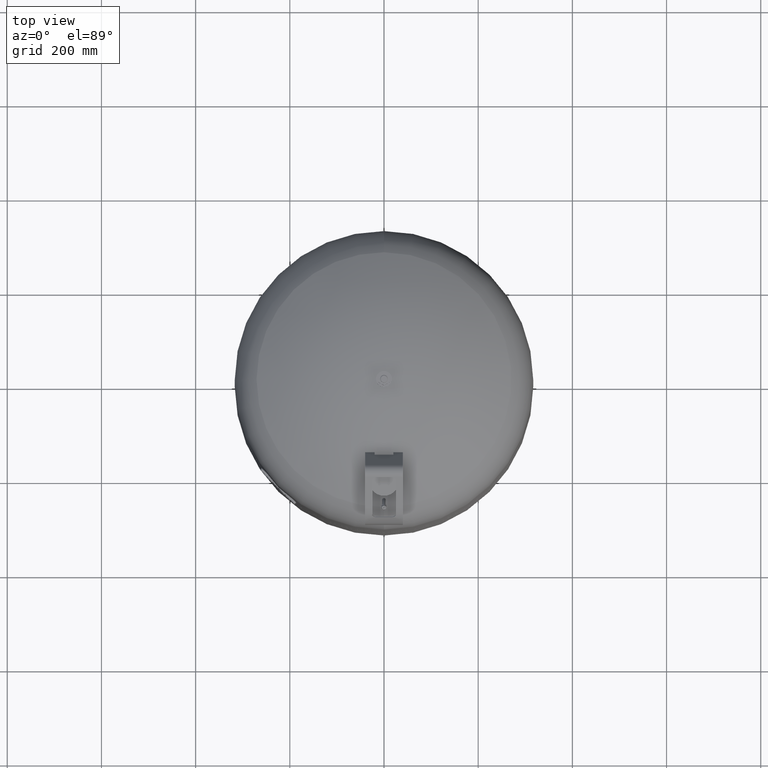
[diagram: clean part render]
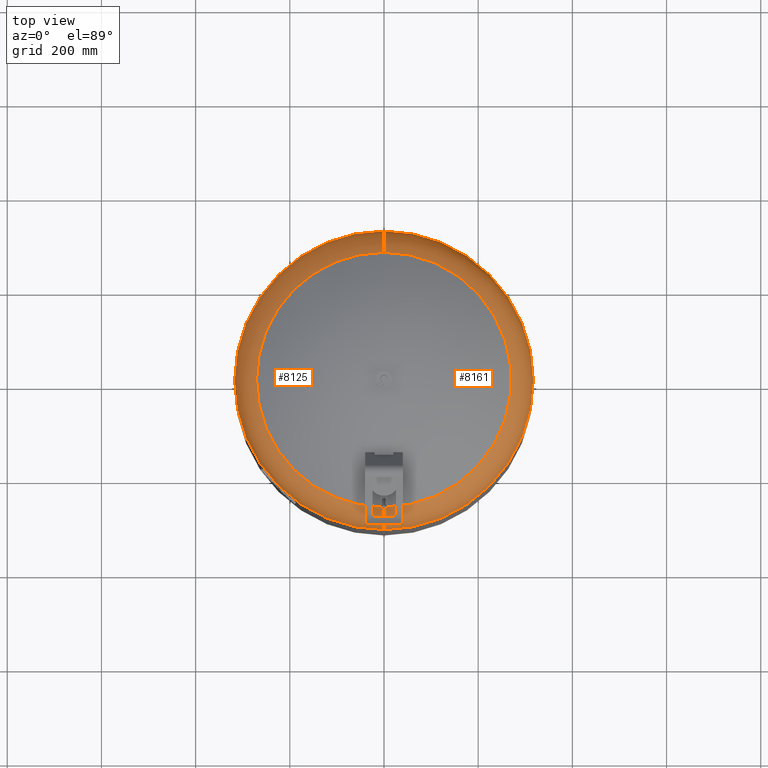
[diagram: same view with one multi-face feature highlighted, each face labeled with its STEP entity id]
A machine part, top view. The highlighted faces form ONE feature: a constant-radius fillet chain: 2 tangent blend faces with common blend radius 99 mm. The faces share edges in the B-rep.
Their STEP definitions:
[1] entity #8161 (Torus):
#8047=CARTESIAN_POINT('',(317.0,1.070453E-014,1076.240550627371200));
#8048=VERTEX_POINT('',#8047);
#8055=CARTESIAN_POINT('',(-3.882002E-014,-317.0,1076.240550627371200));
#8056=VERTEX_POINT('',#8055);
#8057=CARTESIAN_POINT('',(-1.556097E-014,4.952455E-014,1076.240550627371200));
#8058=DIRECTION('',(0.0,0.0,-1.0));
#8059=DIRECTION('',(-1.0,0.0,0.0));
#8060=AXIS2_PLACEMENT_3D('',#8057,#8058,#8059);
#8061=CIRCLE('',#8060,317.000000000000060);
#8062=EDGE_CURVE('',#8048,#8056,#8061,.T.);
#8079=CARTESIAN_POINT('',(6.180908E-030,317.000000000000110,1076.240550627371200));
#8080=VERTEX_POINT('',#8079);
#8081=CARTESIAN_POINT('',(8.065826E-015,270.639024390243830,1160.086439681297600));
#8082=VERTEX_POINT('',#8081);
#8083=CARTESIAN_POINT('',(0.0,218.000000000000060,1076.240550627371200));
#8084=DIRECTION('',(1.0,0.0,0.0));
#8085=DIRECTION('',(0.0,1.0,0.0));
#8086=AXIS2_PLACEMENT_3D('',#8083,#8084,#8085);
#8087=CIRCLE('',#8086,99.0);
#8088=EDGE_CURVE('',#8080,#8082,#8087,.T.);
#8098=CARTESIAN_POINT('',(-2.507680E-014,-270.639024390243830,1160.086439681297600));
#8099=VERTEX_POINT('',#8098);
#8100=CARTESIAN_POINT('',(-2.669642E-014,-217.999999999999940,1076.240550627371200));
#8101=DIRECTION('',(-1.0,0.0,0.0));
#8102=DIRECTION('',(0.0,-1.0,0.0));
#8103=AXIS2_PLACEMENT_3D('',#8100,#8101,#8102);
#8104=CIRCLE('',#8103,99.0);
#8105=EDGE_CURVE('',#8056,#8099,#8104,.T.);
#8133=CARTESIAN_POINT('',(-7.495146E-015,2.385415E-014,1160.086439681297600));
#8134=DIRECTION('',(0.0,0.0,-1.0));
#8135=DIRECTION('',(-1.0,0.0,0.0));
#8136=AXIS2_PLACEMENT_3D('',#8133,#8134,#8135);
#8137=CIRCLE('',#8136,270.639024390243830);
#8138=EDGE_CURVE('',#8082,#8099,#8137,.T.);
#8143=CARTESIAN_POINT('',(0.0,4.952455E-014,1076.240550627371200));
#8144=DIRECTION('',(-9.619823E-017,3.061617E-016,-1.0));
#8145=DIRECTION('',(0.0,1.0,0.0));
#8146=AXIS2_PLACEMENT_3D('',#8143,#8144,#8145);
#8147=TOROIDAL_SURFACE('',#8146,218.0,99.0);
#8148=ORIENTED_EDGE('',*,*,#8088,.T.);
#8149=ORIENTED_EDGE('',*,*,#8138,.T.);
#8150=ORIENTED_EDGE('',*,*,#8105,.F.);
#8151=ORIENTED_EDGE('',*,*,#8062,.F.);
#8152=CARTESIAN_POINT('',(-1.556097E-014,4.952455E-014,1076.240550627371200));
#8153=DIRECTION('',(0.0,0.0,-1.0));
#8154=DIRECTION('',(-1.0,0.0,0.0));
#8155=AXIS2_PLACEMENT_3D('',#8152,#8153,#8154);
#8156=CIRCLE('',#8155,317.000000000000060);
#8157=EDGE_CURVE('',#8080,#8048,#8156,.T.);
#8158=ORIENTED_EDGE('',*,*,#8157,.F.);
#8159=EDGE_LOOP('',(#8148,#8149,#8150,#8151,#8158));
#8160=FACE_OUTER_BOUND('',#8159,.T.);
#8161=ADVANCED_FACE('',(#8160),#8147,.T.);
[2] entity #8125 (Torus):
#8030=CARTESIAN_POINT('',(-317.000000000000060,4.952455E-014,1076.240550627371500));
#8031=VERTEX_POINT('',#8030);
#8055=CARTESIAN_POINT('',(-3.882002E-014,-317.0,1076.240550627371200));
#8056=VERTEX_POINT('',#8055);
#8064=CARTESIAN_POINT('',(-1.556097E-014,4.952455E-014,1076.240550627371200));
#8065=DIRECTION('',(0.0,0.0,-1.0));
#8066=DIRECTION('',(-1.0,0.0,0.0));
#8067=AXIS2_PLACEMENT_3D('',#8064,#8065,#8066);
#8068=CIRCLE('',#8067,317.000000000000060);
#8069=EDGE_CURVE('',#8056,#8031,#8068,.T.);
#8074=CARTESIAN_POINT('',(0.0,4.952455E-014,1076.240550627371200));
#8075=DIRECTION('',(-9.619823E-017,3.061617E-016,-1.0));
#8076=DIRECTION('',(0.0,1.0,0.0));
#8077=AXIS2_PLACEMENT_3D('',#8074,#8075,#8076);
#8078=TOROIDAL_SURFACE('',#8077,218.0,99.0);
#8079=CARTESIAN_POINT('',(6.180908E-030,317.000000000000110,1076.240550627371200));
#8080=VERTEX_POINT('',#8079);
#8081=CARTESIAN_POINT('',(8.065826E-015,270.639024390243830,1160.086439681297600));
#8082=VERTEX_POINT('',#8081);
#8083=CARTESIAN_POINT('',(0.0,218.000000000000060,1076.240550627371200));
#8084=DIRECTION('',(1.0,0.0,0.0));
#8085=DIRECTION('',(0.0,1.0,0.0));
#8086=AXIS2_PLACEMENT_3D('',#8083,#8084,#8085);
#8087=CIRCLE('',#8086,99.0);
#8088=EDGE_CURVE('',#8080,#8082,#8087,.T.);
#8089=ORIENTED_EDGE('',*,*,#8088,.F.);
#8090=CARTESIAN_POINT('',(-1.556097E-014,4.952455E-014,1076.240550627371200));
#8091=DIRECTION('',(0.0,0.0,-1.0));
#8092=DIRECTION('',(-1.0,0.0,0.0));
#8093=AXIS2_PLACEMENT_3D('',#8090,#8091,#8092);
#8094=CIRCLE('',#8093,317.000000000000060);
#8095=EDGE_CURVE('',#8031,#8080,#8094,.T.);
#8096=ORIENTED_EDGE('',*,*,#8095,.F.);
#8097=ORIENTED_EDGE('',*,*,#8069,.F.);
#8098=CARTESIAN_POINT('',(-2.507680E-014,-270.639024390243830,1160.086439681297600));
#8099=VERTEX_POINT('',#8098);
#8100=CARTESIAN_POINT('',(-2.669642E-014,-217.999999999999940,1076.240550627371200));
#8101=DIRECTION('',(-1.0,0.0,0.0));
#8102=DIRECTION('',(0.0,-1.0,0.0));
#8103=AXIS2_PLACEMENT_3D('',#8100,#8101,#8102);
#8104=CIRCLE('',#8103,99.0);
#8105=EDGE_CURVE('',#8056,#8099,#8104,.T.);
#8106=ORIENTED_EDGE('',*,*,#8105,.T.);
#8107=CARTESIAN_POINT('',(-270.639024390243830,2.385415E-014,1160.086439681297600));
#8108=VERTEX_POINT('',#8107);
#8109=CARTESIAN_POINT('',(-7.495146E-015,2.385415E-014,1160.086439681297600));
#8110=DIRECTION('',(0.0,0.0,-1.0));
#8111=DIRECTION('',(-1.0,0.0,0.0));
#8112=AXIS2_PLACEMENT_3D('',#8109,#8110,#8111);
#8113=CIRCLE('',#8112,270.639024390243830);
#8114=EDGE_CURVE('',#8099,#8108,#8113,.T.);
#8115=ORIENTED_EDGE('',*,*,#8114,.T.);
#8116=CARTESIAN_POINT('',(-7.495146E-015,2.385415E-014,1160.086439681297600));
#8117=DIRECTION('',(0.0,0.0,-1.0));
#8118=DIRECTION('',(-1.0,0.0,0.0));
#8119=AXIS2_PLACEMENT_3D('',#8116,#8117,#8118);
#8120=CIRCLE('',#8119,270.639024390243830);
#8121=EDGE_CURVE('',#8108,#8082,#8120,.T.);
#8122=ORIENTED_EDGE('',*,*,#8121,.T.);
#8123=EDGE_LOOP('',(#8089,#8096,#8097,#8106,#8115,#8122));
#8124=FACE_OUTER_BOUND('',#8123,.T.);
#8125=ADVANCED_FACE('',(#8124),#8078,.T.);